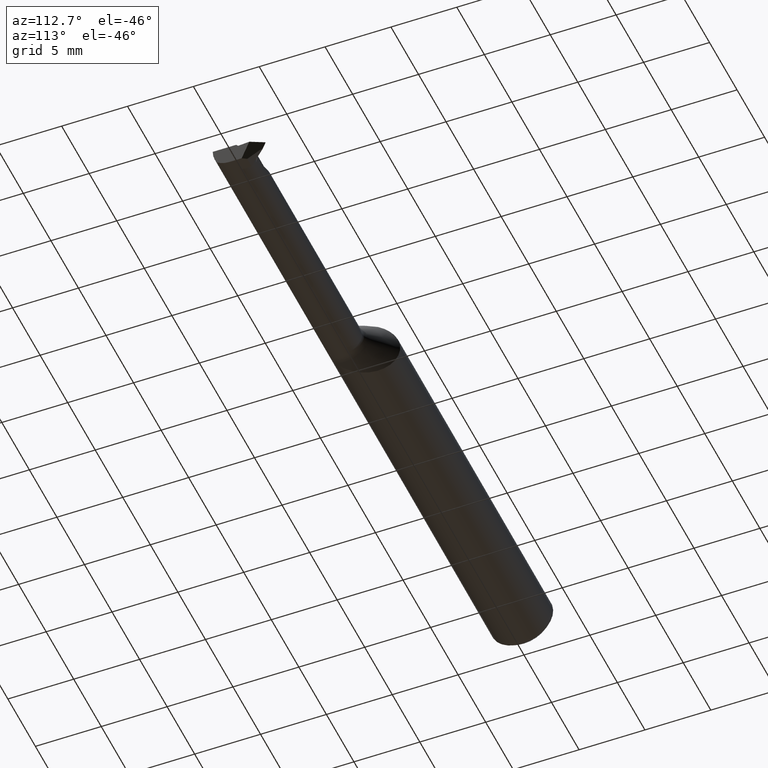
[diagram: clean part render]
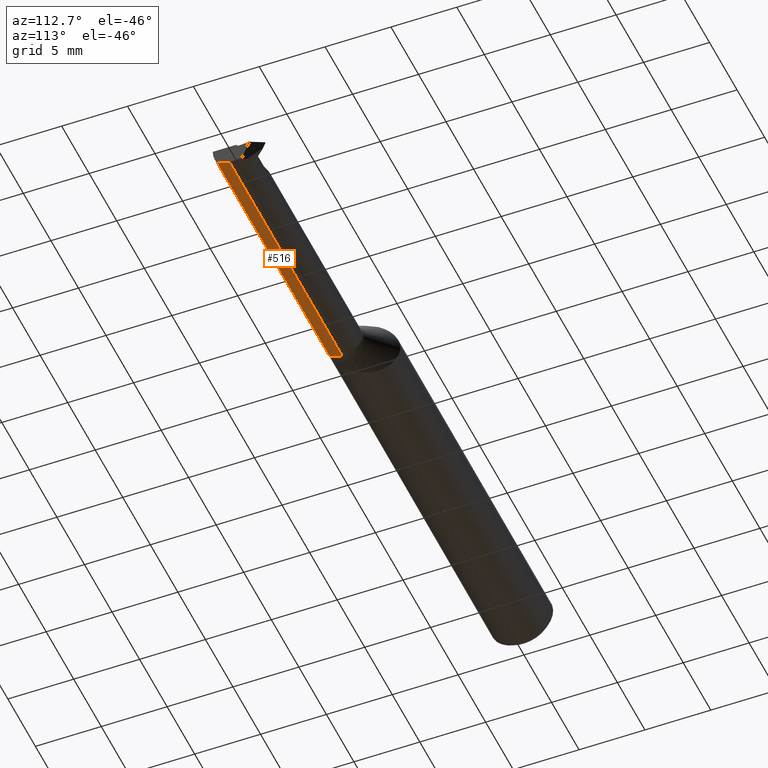
[diagram: same view with one face highlighted and labeled with its STEP entity id]
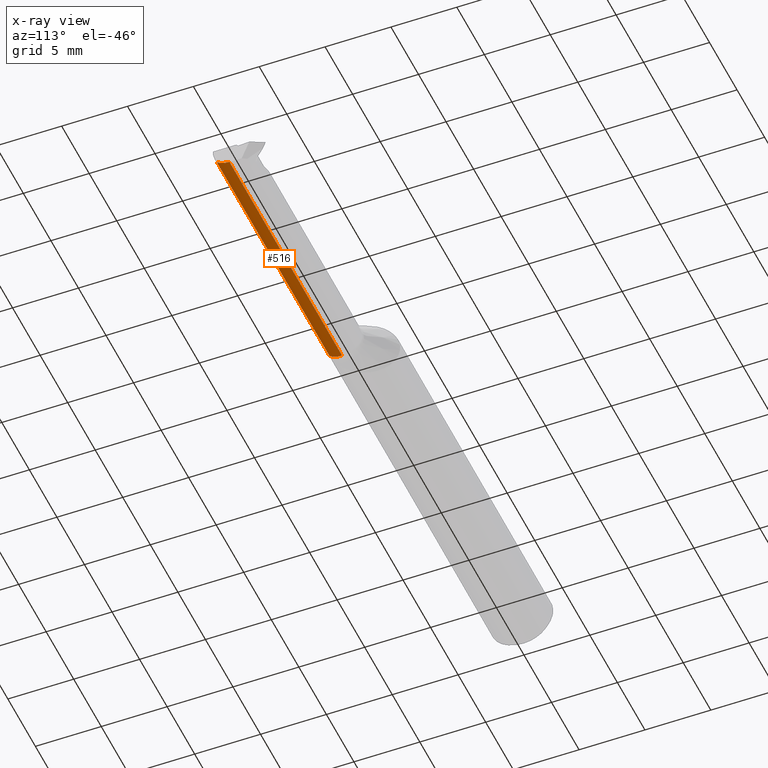
[diagram: x-ray of the same camera — body ghosted, the highlighted face saturated]
A machine part, auxiliary view. The second image highlights one B-rep face of the part: STEP entity #516.
The next image is the same camera in x-ray: the body ghosted, the highlighted face saturated — about 0% of this face is hidden behind the body in this view.
In plain terms, the highlighted cylindrical surface (edge-blend (fillet) strip) has radius 1.524 mm, axis along (-1, -0, -0).
Its self-contained STEP definition (entity closure, byte-faithful):
#3 = ORIENTED_EDGE ( 'NONE', *, *, #920, .F. ) ;
#22 = AXIS2_PLACEMENT_3D ( 'NONE', #946, #1012, #377 ) ;
#25 = DIRECTION ( 'NONE',  ( -1.000000000000000000, -0.000000000000000000, -0.000000000000000000 ) ) ;
#36 = CARTESIAN_POINT ( 'NONE',  ( 1.195355339059327227, -0.04360000000000000681, 0.000000000000000000 ) ) ;
#42 = VECTOR ( 'NONE', #25, 39.37007874015748143 ) ;
#43 = CYLINDRICAL_SURFACE ( 'NONE', #22, 0.05999999999999999778 ) ;
#85 = AXIS2_PLACEMENT_3D ( 'NONE', #36, #450, #463 ) ;
#119 = VERTEX_POINT ( 'NONE', #895 ) ;
#129 = CARTESIAN_POINT ( 'NONE',  ( 2.000000000000000000, -0.04360000000000001374, -0.06000000000000001860 ) ) ;
#134 = VERTEX_POINT ( 'NONE', #737 ) ;
#171 = ORIENTED_EDGE ( 'NONE', *, *, #408, .F. ) ;
#217 = ORIENTED_EDGE ( 'NONE', *, *, #818, .F. ) ;
#219 = DIRECTION ( 'NONE',  ( -1.000000000000000000, -0.000000000000000000, -0.000000000000000000 ) ) ;
#339 = DIRECTION ( 'NONE',  ( -1.000000000000000000, -0.000000000000000000, -0.000000000000000000 ) ) ;
#357 = CARTESIAN_POINT ( 'NONE',  ( 2.000000000000000000, -0.04360000000000000681, 0.000000000000000000 ) ) ;
#377 = DIRECTION ( 'NONE',  ( 0.000000000000000000, 0.000000000000000000, 1.000000000000000000 ) ) ;
#405 = CIRCLE ( 'NONE', #971, 0.06000000000000001166 ) ;
#408 = EDGE_CURVE ( 'NONE', #134, #119, #405, .T. ) ;
#430 = CARTESIAN_POINT ( 'NONE',  ( 1.184999999999999831, -0.04359999999999999987, -0.05999999999999999778 ) ) ;
#450 = DIRECTION ( 'NONE',  ( 1.000000000000000000, 0.000000000000000000, 0.000000000000000000 ) ) ;
#458 = FACE_OUTER_BOUND ( 'NONE', #528, .T. ) ;
#463 = DIRECTION ( 'NONE',  ( 0.000000000000000000, 1.707404996040164561E-15, 1.000000000000000000 ) ) ;
#485 = EDGE_CURVE ( 'NONE', #539, #927, #714, .T. ) ;
#493 = LINE ( 'NONE', #430, #42 ) ;
#516 = ADVANCED_FACE ( 'NONE', ( #458 ), #43, .T. ) ;
#528 = EDGE_LOOP ( 'NONE', ( #217, #3, #171, #1015, #918 ) ) ;
#539 = VERTEX_POINT ( 'NONE', #603 ) ;
#540 = CARTESIAN_POINT ( 'NONE',  ( 1.961119976209501070, -0.04360000000000001374, -0.06000000000000001166 ) ) ;
#603 = CARTESIAN_POINT ( 'NONE',  ( 1.195355339059327227, -0.08098532110091744007, -0.04692907165266853309 ) ) ;
#612 = CARTESIAN_POINT ( 'NONE',  ( 1.195355339059327227, -0.04359999999999999987, -0.05999999999999999778 ) ) ;
#714 = CIRCLE ( 'NONE', #85, 0.05999999999999999778 ) ;
#720 = EDGE_CURVE ( 'NONE', #134, #539, #736, .T. ) ;
#736 = LINE ( 'NONE', #1044, #813 ) ;
#737 = CARTESIAN_POINT ( 'NONE',  ( 2.000000000000000000, -0.08098532110091745395, -0.04692907165266857472 ) ) ;
#813 = VECTOR ( 'NONE', #339, 39.37007874015748143 ) ;
#818 = EDGE_CURVE ( 'NONE', #917, #927, #493, .T. ) ;
#895 = CARTESIAN_POINT ( 'NONE',  ( 2.000000000000000000, -0.04360000000000001374, -0.06000000000000001860 ) ) ;
#917 = VERTEX_POINT ( 'NONE', #540 ) ;
#918 = ORIENTED_EDGE ( 'NONE', *, *, #485, .T. ) ;
#920 = EDGE_CURVE ( 'NONE', #119, #917, #928, .T. ) ;
#927 = VERTEX_POINT ( 'NONE', #612 ) ;
#928 = LINE ( 'NONE', #129, #983 ) ;
#946 = CARTESIAN_POINT ( 'NONE',  ( 1.184999999999999831, -0.04360000000000000681, 0.000000000000000000 ) ) ;
#971 = AXIS2_PLACEMENT_3D ( 'NONE', #357, #1007, #988 ) ;
#983 = VECTOR ( 'NONE', #219, 39.37007874015748143 ) ;
#988 = DIRECTION ( 'NONE',  ( 0.000000000000000000, 0.000000000000000000, 1.000000000000000000 ) ) ;
#1007 = DIRECTION ( 'NONE',  ( 1.000000000000000000, -0.000000000000000000, -0.000000000000000000 ) ) ;
#1012 = DIRECTION ( 'NONE',  ( -1.000000000000000000, -0.000000000000000000, -0.000000000000000000 ) ) ;
#1015 = ORIENTED_EDGE ( 'NONE', *, *, #720, .T. ) ;
#1044 = CARTESIAN_POINT ( 'NONE',  ( 1.567499999999999893, -0.08098532110091744007, -0.04692907165266853309 ) ) ;